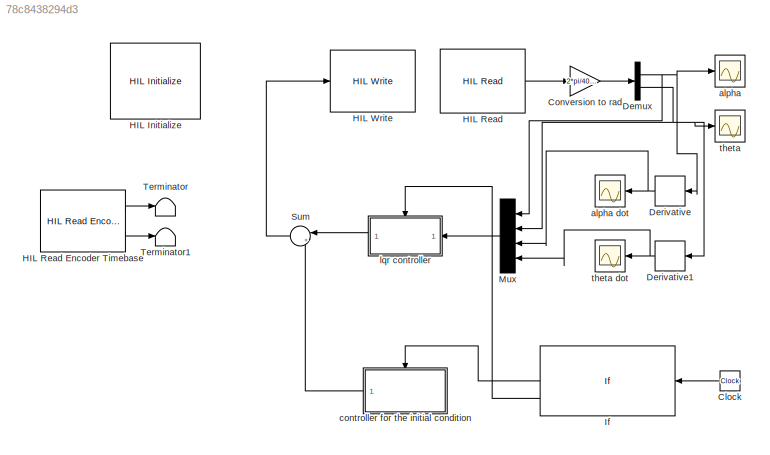
MODEL slx_78c8438294d3
KIND model
CONFIG AbsTol = auto
CONFIG EnableMultiTasking = on
CONFIG FixedStep = 0.1
CONFIG MaxStep = auto
CONFIG MinStep = auto
CONFIG RelTol = 1e-3
CONFIG SampleTimeConstraint = Unconstrained
CONFIG Solver = FixedStepDiscrete
CONFIG SolverName = FixedStepDiscrete
CONFIG StartTime = 0.0
CONFIG StopTime = Inf
BLOCK [Clock] Clock
BLOCK [Gain] Conversion to rad
  Gain = 2*pi/4096
BLOCK [Demux] Demux
  Outputs = 2
  Ports = [1, 2]
BLOCK [Derivative] Derivative
  CoefficientInTFapproximation = 1
BLOCK [Derivative] Derivative1
  CoefficientInTFapproximation = 1
BLOCK [Reference] HIL Initialize  REF=quarc_library/Data Acquisition/Generic/Configuration/HIL Initialize
  AttributesFormatString = %<object_name> (%<board_type>-%<board_number>)
  Ports = []
  SourceBlock = quarc_library/Data Acquisition/Generic/Configuration/HIL Initialize
  SourceProductName = QUARC Targets
  SourceType = HIL Initialize
  UserDataPersistent = on
BLOCK [Reference] HIL Read  REF=quarc_library/Data Acquisition/Generic/Immediate I//O/HIL Read
  AttributesFormatString = (%<object_name>)
  Ports = [0, 1]
  SourceBlock = quarc_library/Data Acquisition/Generic/Immediate I//O/HIL Read
  SourceProductName = QUARC Targets
  SourceType = HIL Read
  UserDataPersistent = on
BLOCK [Reference] HIL Read Encoder Timebase  REF=quarc_library/Data Acquisition/Generic/Timebases/HIL Read Encoder
Timebase
  AttributesFormatString = (%<object_name>)
  Ports = [0, 2]
  SourceBlock = quarc_library/Data Acquisition/Generic/Timebases/HIL Read Encoder\nTimebase
  SourceProductName = QUARC Targets
  SourceType = HIL Read Encoder Timebase
  UserDataPersistent = on
BLOCK [Reference] HIL Write  REF=quarc_library/Data Acquisition/Generic/Immediate I//O/HIL Write
  AttributesFormatString = (%<object_name>)
  Ports = [1]
  SourceBlock = quarc_library/Data Acquisition/Generic/Immediate I//O/HIL Write
  SourceProductName = QUARC Targets
  SourceType = HIL Write
  UserDataPersistent = on
BLOCK [If] If
  ElseIfExpressions = u1 >= 1 & u1 <2
  IfExpression = u1 < 1
  Ports = [1, 3]
BLOCK [Mux] Mux
  DisplayOption = bar
  Ports = [4, 1]
BLOCK [Sum] Sum
  Inputs = |++
  Ports = [2, 1]
BLOCK [Terminator] Terminator
BLOCK [Terminator] Terminator1
BLOCK [Scope] alpha
  Floating = off
  NumInputPorts = 1
  Ports = [1]
  ScopeSpecificationString = Simulink.scopes.TimeScopeBlockCfg('CurrentConfiguration', extmgr.ConfigurationSet(extmgr.Configuration('Core','General UI',true),extmgr.Configuration('Core','Source UI',true),extmgr.Configuration('Sources','WiredSimulink',true,'DataLogging',true,'DataLoggingVariableName','alpha','DataLoggingSaveFormat','StructureWithTime'),extmgr.Configuration('Visuals','Time Domain',true,'SerializedDisplays',{str...<+1505ch>
BLOCK [Scope] alpha dot
  Floating = off
  NumInputPorts = 1
  Ports = [1]
  ScopeSpecificationString = Simulink.scopes.TimeScopeBlockCfg('CurrentConfiguration', extmgr.ConfigurationSet(extmgr.Configuration('Core','General UI',true),extmgr.Configuration('Core','Source UI',true),extmgr.Configuration('Sources','WiredSimulink',true,'DataLoggingVariableName','alphadot','DataLogging',true,'DataLoggingSaveFormat','StructureWithTime'),extmgr.Configuration('Visuals','Time Domain',true,'SerializedDisplays',{...<+1476ch>
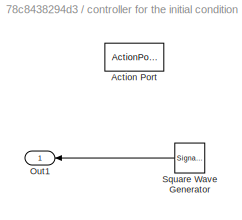
BLOCK [SubSystem] controller for the initial condition
  Ports = [0, 1, 0, 0, 0, 0, 0, 1]
  RequestExecContextInheritance = off
  TreatAsAtomicUnit = on
BLOCK [ActionPort] controller for the initial condition/Action Port
  ActionPortLabel = elseif(u1 >= 1 & u1 <2)
BLOCK [Outport] controller for the initial condition/Out1
BLOCK [SignalGenerator] controller for the initial condition/Square Wave Generator
  Ports = [0, 1]
  WaveForm = square
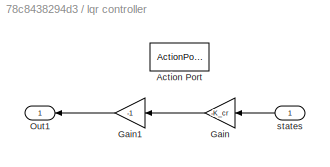
BLOCK [SubSystem] lqr controller
  Ports = [1, 1, 0, 0, 0, 0, 0, 1]
  RequestExecContextInheritance = off
  TreatAsAtomicUnit = on
BLOCK [ActionPort] lqr controller/Action Port
  ActionPortLabel = else
BLOCK [Gain] lqr controller/Gain
  Gain = -K_cr
  Multiplication = Matrix(K*u)
BLOCK [Gain] lqr controller/Gain1
  Gain = -1
BLOCK [Outport] lqr controller/Out1
BLOCK [Inport] lqr controller/states
BLOCK [Scope] theta
  Floating = off
  NumInputPorts = 1
  Ports = [1]
  ScopeSpecificationString = Simulink.scopes.TimeScopeBlockCfg('CurrentConfiguration', extmgr.ConfigurationSet(extmgr.Configuration('Core','General UI',true),extmgr.Configuration('Core','Source UI',true),extmgr.Configuration('Sources','WiredSimulink',true,'DataLoggingVariableName','theta','DataLogging',true,'DataLoggingSaveFormat','StructureWithTime'),extmgr.Configuration('Visuals','Time Domain',true,'SerializedDisplays',{str...<+1467ch>
BLOCK [Scope] theta dot
  Floating = off
  NumInputPorts = 1
  Ports = [1]
  ScopeSpecificationString = Simulink.scopes.TimeScopeBlockCfg('CurrentConfiguration', extmgr.ConfigurationSet(extmgr.Configuration('Core','General UI',true),extmgr.Configuration('Core','Source UI',true),extmgr.Configuration('Sources','WiredSimulink',true,'DataLoggingVariableName','thetadot','DataLogging',true,'DataLoggingSaveFormat','StructureWithTime'),extmgr.Configuration('Visuals','Time Domain',true,'SerializedDisplays',{...<+1431ch>
LINE Clock:1 -> If:1
LINE Conversion to rad:1 -> Demux:1
NET Demux:1 -> Derivative:1, Mux:1, alpha:1
NET Demux:2 -> Derivative1:1, Mux:2, theta:1
NET Derivative1:1 -> Mux:4, theta dot:1
NET Derivative:1 -> Mux:3, alpha dot:1
LINE HIL Read Encoder Timebase:1 -> Terminator:1
LINE HIL Read Encoder Timebase:2 -> Terminator1:1
LINE HIL Read:1 -> Conversion to rad:1
LINE If:2 -> controller for the initial condition:ifaction
LINE If:3 -> lqr controller:ifaction
LINE Mux:1 -> lqr controller:1
LINE Sum:1 -> HIL Write:1
LINE controller for the initial condition/Square Wave Generator:1 -> controller for the initial condition/Out1:1
LINE controller for the initial condition:1 -> Sum:2
LINE lqr controller/Gain1:1 -> lqr controller/Out1:1
LINE lqr controller/Gain:1 -> lqr controller/Gain1:1
LINE lqr controller/states:1 -> lqr controller/Gain:1
LINE lqr controller:1 -> Sum:1
note: NET lines group one-source signal fan-out (src -> all destinations, sorted); 1:1 wires keep LINE
